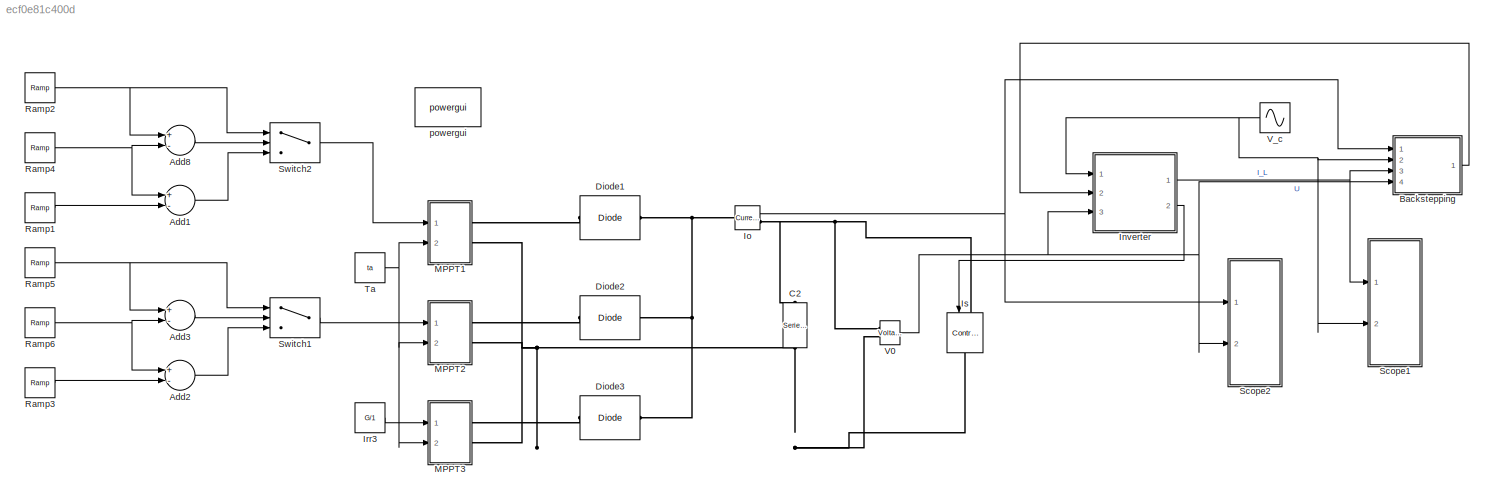
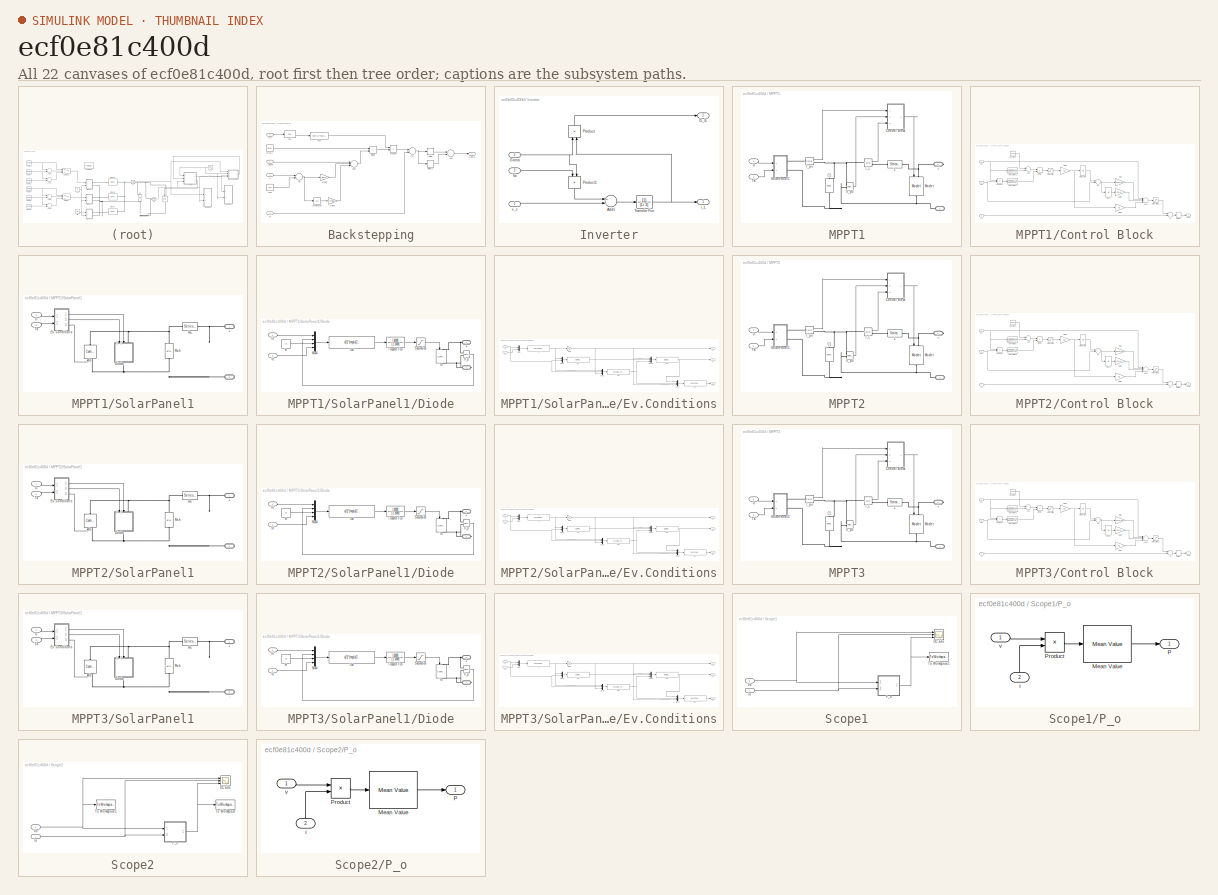
[diagram: thumbnail index - all 22 canvases of the model, root first then tree order]
MODEL slx_ecf0e81c400d
KIND model
CONFIG AbsTol = auto
CONFIG FixedStep = auto
CONFIG MaxStep = 1e-4
CONFIG MinStep = auto
CONFIG RelTol = 1e-3
CONFIG SampleTimeConstraint = Unconstrained
CONFIG Solver = ode23s
CONFIG SolverMode = Auto
CONFIG SolverName = ode23s
CONFIG StartTime = 0.0
CONFIG StopTime = 0.1
BLOCK [Sum] Add1
  InputSameDT = off
  Inputs = +-
  OutDataTypeStr = Inherit: Inherit via internal rule
  Ports = [2, 1]
  SaturateOnIntegerOverflow = off
BLOCK [Sum] Add2
  InputSameDT = off
  Inputs = +-
  OutDataTypeStr = Inherit: Inherit via internal rule
  Ports = [2, 1]
  SaturateOnIntegerOverflow = off
BLOCK [Sum] Add3
  InputSameDT = off
  Inputs = +-
  OutDataTypeStr = Inherit: Inherit via internal rule
  Ports = [2, 1]
  SaturateOnIntegerOverflow = off
BLOCK [Sum] Add8
  InputSameDT = off
  Inputs = +-
  OutDataTypeStr = Inherit: Inherit via internal rule
  Ports = [2, 1]
  SaturateOnIntegerOverflow = off
BLOCK [SubSystem] Backstepping
  Ports = [4, 1]
  RequestExecContextInheritance = off
  Variant = off
BLOCK [Sum] Backstepping/Add
  InputSameDT = off
  OutDataTypeStr = Inherit: Inherit via internal rule
  Ports = [2, 1]
  SaturateOnIntegerOverflow = off
BLOCK [Sum] Backstepping/Add2
  InputSameDT = off
  Inputs = +--
  OutDataTypeStr = Inherit: Inherit via internal rule
  Ports = [3, 1]
  SaturateOnIntegerOverflow = off
BLOCK [Product] Backstepping/Divide
  InputSameDT = off
  Inputs = /*
  OutDataTypeStr = Inherit: Inherit via internal rule
  Ports = [2, 1]
  RndMeth = Floor
  SaturateOnIntegerOverflow = off
BLOCK [Fcn] Backstepping/Fcn
  Expr = sqrt(2)*sin(u(1))
BLOCK [Constant] Backstepping/GAMA
  Value = GAMA
BLOCK [Gain] Backstepping/Gain2
  Gain = k_inv*Cdc_inv
  OutDataTypeStr = Inherit: Inherit via internal rule
  ParamDataTypeStr = Inherit: Inherit via internal rule
  SaturateOnIntegerOverflow = off
BLOCK [Gain] Backstepping/Gain3
  Gain = k_A*Cdc_inv
  OutDataTypeStr = Inherit: Inherit via internal rule
  ParamDataTypeStr = Inherit: Inherit via internal rule
  SaturateOnIntegerOverflow = off
BLOCK [Outport] Backstepping/Gama
  IconDisplay = Port number
BLOCK [Inport] Backstepping/I_boost
  IconDisplay = Port number
BLOCK [Integrator] Backstepping/Integrator
  LowerSaturationLimit = -30
  Ports = [1, 1]
  UpperSaturationLimit = 30
BLOCK [Reference] Backstepping/PLL  REF=powerlib_meascontrol/PLL/PLL
  Ports = [1, 2]
  SourceBlock = powerlib_meascontrol/PLL/PLL
  SourceType = PLL
BLOCK [Product] Backstepping/Product
  InputSameDT = off
  OutDataTypeStr = Inherit: Inherit via internal rule
  Ports = [2, 1]
  RndMeth = Floor
  SaturateOnIntegerOverflow = off
BLOCK [Relay] Backstepping/Relay
  InputProcessing = Elements as channels (sample based)
  OffOutputValue = -0.5
  OffSwitchValue = -delta_Ii
  OnOutputValue = 0.5
  OnSwitchValue = delta_Ii
  ZeroCross = off
BLOCK [Relay] Backstepping/Relay1
  InputProcessing = Elements as channels (sample based)
  OffOutputValue = -0.5
  OffSwitchValue = -delta_Ii/2
  OnOutputValue = 0.5
  OnSwitchValue = delta_Ii/2
  ZeroCross = off
BLOCK [Inport] Backstepping/U
  IconDisplay = Port number
  Port = 4
BLOCK [Constant] Backstepping/Uref
  Value = 400
BLOCK [Sum] Backstepping/e_iL
  InputSameDT = off
  Inputs = +-
  OutDataTypeStr = Inherit: Inherit via internal rule
  Ports = [2, 1]
  SaturateOnIntegerOverflow = off
BLOCK [Sum] Backstepping/eu
  InputSameDT = off
  Inputs = -+
  OutDataTypeStr = Inherit: Inherit via internal rule
  Ports = [2, 1]
  SaturateOnIntegerOverflow = off
BLOCK [Inport] Backstepping/i_L
  IconDisplay = Port number
  Port = 3
BLOCK [Inport] Backstepping/v_c
  IconDisplay = Port number
  Port = 2
BLOCK [Reference] C2  REF=powerlib/Elements/Series RLC Branch
  Ports = [0, 0, 0, 0, 0, 1, 1]
  SourceBlock = powerlib/Elements/Series RLC Branch
  SourceType = Series RLC Branch
BLOCK [Reference] Diode1  REF=powerlib/Power
Electronics/Diode
  Ports = [0, 0, 0, 0, 0, 1, 1]
  SourceBlock = powerlib/Power\nElectronics/Diode
  SourceType = Diode
BLOCK [Reference] Diode2  REF=powerlib/Power
Electronics/Diode
  Ports = [0, 0, 0, 0, 0, 1, 1]
  SourceBlock = powerlib/Power\nElectronics/Diode
  SourceType = Diode
BLOCK [Reference] Diode3  REF=powerlib/Power
Electronics/Diode
  Ports = [0, 0, 0, 0, 0, 1, 1]
  SourceBlock = powerlib/Power\nElectronics/Diode
  SourceType = Diode
BLOCK [SubSystem] Inverter
  Ports = [3, 2]
  RequestExecContextInheritance = off
  Variant = off
BLOCK [Sum] Inverter/Add1
  InputSameDT = off
  Inputs = +-
  OutDataTypeStr = Inherit: Inherit via internal rule
  Ports = [2, 1]
  SaturateOnIntegerOverflow = off
BLOCK [Outport] Inverter/G_IL
  IconDisplay = Port number
  Port = 2
BLOCK [Inport] Inverter/Gama
  IconDisplay = Port number
  Port = 2
BLOCK [Product] Inverter/Product
  InputSameDT = off
  OutDataTypeStr = Inherit: Inherit via internal rule
  Ports = [2, 1]
  RndMeth = Floor
  SaturateOnIntegerOverflow = off
BLOCK [Product] Inverter/Product1
  InputSameDT = off
  OutDataTypeStr = Inherit: Inherit via internal rule
  Ports = [2, 1]
  RndMeth = Floor
  SaturateOnIntegerOverflow = off
BLOCK [TransferFcn] Inverter/Transfer Fcn
  Denominator = [Li 3]
BLOCK [Inport] Inverter/Vo
  IconDisplay = Port number
  Port = 3
BLOCK [Outport] Inverter/i_L
  IconDisplay = Port number
BLOCK [Inport] Inverter/v_c
  IconDisplay = Port number
BLOCK [Reference] Io  REF=powerlib/Measurements/Current Measurement
  Ports = [0, 1, 0, 0, 0, 1, 1]
  SourceBlock = powerlib/Measurements/Current Measurement
  SourceType = Current Measurement
BLOCK [Constant] Irr3
  Value = G/1
BLOCK [Reference] Is  REF=powerlib/Electrical
Sources/Controlled Current Source
  Ports = [1, 0, 0, 0, 0, 1, 1]
  SourceBlock = powerlib/Electrical\nSources/Controlled Current Source
  SourceType = Controlled Current Source
BLOCK [SubSystem] MPPT1
  Ports = [2, 0, 0, 0, 0, 0, 2]
  RequestExecContextInheritance = off
  Variant = off
BLOCK [PMIOPort] MPPT1/+
  Port = 1
  Side = Right
BLOCK [PMIOPort] MPPT1/-
  Port = 2
  Side = Right
BLOCK [Reference] MPPT1/C1  REF=powerlib/Elements/Series RLC Branch
  Ports = [0, 0, 0, 0, 0, 1, 1]
  SourceBlock = powerlib/Elements/Series RLC Branch
  SourceType = Series RLC Branch
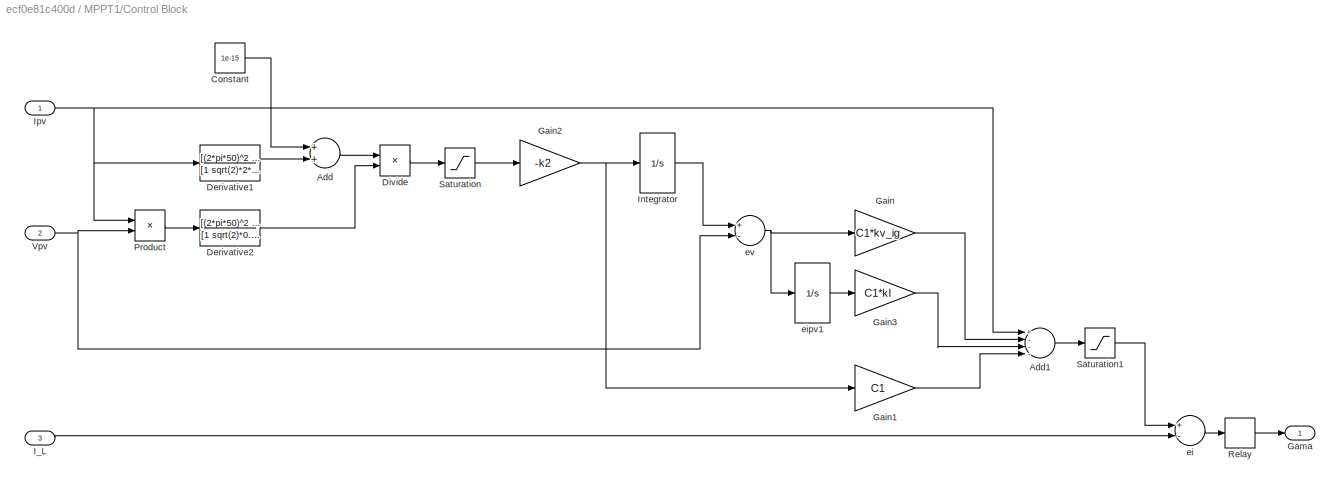
BLOCK [SubSystem] MPPT1/Control Block
  Ports = [3, 1]
  RequestExecContextInheritance = off
  Variant = off
BLOCK [Sum] MPPT1/Control Block/Add
  InputSameDT = off
  OutDataTypeStr = Inherit: Inherit via internal rule
  Ports = [2, 1]
  SaturateOnIntegerOverflow = off
BLOCK [Sum] MPPT1/Control Block/Add1
  InputSameDT = off
  Inputs = +---
  OutDataTypeStr = Inherit: Inherit via internal rule
  Ports = [4, 1]
  SaturateOnIntegerOverflow = off
BLOCK [Constant] MPPT1/Control Block/Constant
  Value = 1e-15
BLOCK [TransferFcn] MPPT1/Control Block/Derivative1
  Denominator = [1 sqrt(2)*2*pi*50 (2*pi*50)^2]
  Numerator = [(2*pi*50)^2 0]
BLOCK [TransferFcn] MPPT1/Control Block/Derivative2
  Denominator = [1 sqrt(2)*0.7*2*pi*50 (2*pi*50)^2]
  Numerator = [(2*pi*50)^2 0]
BLOCK [Product] MPPT1/Control Block/Divide
  InputSameDT = off
  Inputs = /*
  OutDataTypeStr = Inherit: Inherit via internal rule
  Ports = [2, 1]
  RndMeth = Floor
  SaturateOnIntegerOverflow = off
BLOCK [Gain] MPPT1/Control Block/Gain
  Gain = C1*kv_ig
  OutDataTypeStr = Inherit: Inherit via internal rule
  ParamDataTypeStr = Inherit: Inherit via internal rule
  SaturateOnIntegerOverflow = off
BLOCK [Gain] MPPT1/Control Block/Gain1
  Gain = C1
  OutDataTypeStr = Inherit: Inherit via internal rule
  ParamDataTypeStr = Inherit: Inherit via internal rule
  SaturateOnIntegerOverflow = off
BLOCK [Gain] MPPT1/Control Block/Gain2
  Gain = -k2
  OutDataTypeStr = Inherit: Inherit via internal rule
  ParamDataTypeStr = Inherit: Inherit via internal rule
  SaturateOnIntegerOverflow = off
BLOCK [Gain] MPPT1/Control Block/Gain3
  Gain = C1*kI
  OutDataTypeStr = Inherit: Inherit via internal rule
  ParamDataTypeStr = Inherit: Inherit via internal rule
  SaturateOnIntegerOverflow = off
BLOCK [Outport] MPPT1/Control Block/Gama
  IconDisplay = Port number
BLOCK [Inport] MPPT1/Control Block/I_L
  IconDisplay = Port number
  Port = 3
BLOCK [Integrator] MPPT1/Control Block/Integrator
  InitialCondition = Voc*0.75
  LimitOutput = on
  LowerSaturationLimit = 0
  Ports = [1, 1]
  UpperSaturationLimit = Voc
BLOCK [Inport] MPPT1/Control Block/Ipv
  IconDisplay = Port number
BLOCK [Product] MPPT1/Control Block/Product
  InputSameDT = off
  Inputs = **
  OutDataTypeStr = Inherit: Inherit via internal rule
  Ports = [2, 1]
  RndMeth = Floor
  SaturateOnIntegerOverflow = off
BLOCK [Relay] MPPT1/Control Block/Relay
  InputProcessing = Elements as channels (sample based)
  OffSwitchValue = -delta_Il
  OnSwitchValue = delta_Il
BLOCK [Saturate] MPPT1/Control Block/Saturation
  InputPortMap = u0
  LowerLimit = -2
  Ports = [1, 1]
  UpperLimit = 2
BLOCK [Saturate] MPPT1/Control Block/Saturation1
  InputPortMap = u0
  LowerLimit = 0
  Ports = [1, 1]
  UpperLimit = Isc*1.2
BLOCK [Inport] MPPT1/Control Block/Vpv
  IconDisplay = Port number
  Port = 2
BLOCK [Sum] MPPT1/Control Block/ei
  InputSameDT = off
  Inputs = +-
  OutDataTypeStr = Inherit: Inherit via internal rule
  Ports = [2, 1]
  SaturateOnIntegerOverflow = off
BLOCK [Integrator] MPPT1/Control Block/eipv1
  LowerSaturationLimit = 0
  Ports = [1, 1]
  UpperSaturationLimit = Voc*N
BLOCK [Sum] MPPT1/Control Block/ev
  InputSameDT = off
  Inputs = +-
  OutDataTypeStr = Inherit: Inherit via internal rule
  Ports = [2, 1]
  SaturateOnIntegerOverflow = off
BLOCK [Inport] MPPT1/G
  IconDisplay = Port number
BLOCK [Reference] MPPT1/I_L  REF=powerlib/Measurements/Current Measurement
  Ports = [0, 1, 0, 0, 0, 1, 1]
  SourceBlock = powerlib/Measurements/Current Measurement
  SourceType = Current Measurement
BLOCK [Reference] MPPT1/I_pv  REF=powerlib/Measurements/Current Measurement
  Ports = [0, 1, 0, 0, 0, 1, 1]
  SourceBlock = powerlib/Measurements/Current Measurement
  SourceType = Current Measurement
BLOCK [Reference] MPPT1/L  REF=powerlib/Elements/Series RLC Branch
  Ports = [0, 0, 0, 0, 0, 1, 1]
  SourceBlock = powerlib/Elements/Series RLC Branch
  SourceType = Series RLC Branch
BLOCK [Reference] MPPT1/Mosfet  REF=powerlib/Power
Electronics/Mosfet
  Ports = [1, 0, 0, 0, 0, 1, 1]
  SourceBlock = powerlib/Power\nElectronics/Mosfet
  SourceType = Mosfet
BLOCK [SubSystem] MPPT1/SolarPanel1
  Ports = [2, 0, 0, 0, 0, 0, 2]
  RequestExecContextInheritance = off
  Variant = off
BLOCK [PMIOPort] MPPT1/SolarPanel1/+
  Port = 1
  Side = Right
BLOCK [PMIOPort] MPPT1/SolarPanel1/-
  Port = 2
  Side = Right
BLOCK [SubSystem] MPPT1/SolarPanel1/Diode
  AncestorBlock = re_lib/Solar/PV Array/Diode Rsh
  Ports = [2, 0, 0, 0, 0, 1, 1]
  RequestExecContextInheritance = off
  Variant = off
BLOCK [PMIOPort] MPPT1/SolarPanel1/Diode/+
  Port = 1
  Side = Left
BLOCK [PMIOPort] MPPT1/SolarPanel1/Diode/-
  Port = 2
  Side = Right
BLOCK [Fcn] MPPT1/SolarPanel1/Diode/I0d
  Expr = u(1)*(exp(u(2)/(u(3)*u(4)))-1)
BLOCK [Reference] MPPT1/SolarPanel1/Diode/Id  REF=powerlib/Electrical
Sources/Controlled Current Source
  Ports = [1, 0, 0, 0, 0, 1, 1]
  SourceBlock = powerlib/Electrical\nSources/Controlled Current Source
  SourceType = Controlled Current Source
BLOCK [Inport] MPPT1/SolarPanel1/Diode/Io
  IconDisplay = Port number
BLOCK [Mux] MPPT1/SolarPanel1/Diode/Mux4
  DisplayOption = bar
  Ports = [4, 1]
BLOCK [Saturate] MPPT1/SolarPanel1/Diode/Saturation
  InputPortMap = u0
  LowerLimit = 0
  Ports = [1, 1]
  UpperLimit = Isc
BLOCK [TransferFcn] MPPT1/SolarPanel1/Diode/Transfer Fcn
  Denominator = [1 1000]
  Numerator = [1000]
BLOCK [Reference] MPPT1/SolarPanel1/Diode/V_d  REF=powerlib/Measurements/Voltage Measurement
  Ports = [0, 1, 0, 0, 0, 2]
  SourceBlock = powerlib/Measurements/Voltage Measurement
  SourceType = Voltage Measurement
BLOCK [Inport] MPPT1/SolarPanel1/Diode/Vt
  IconDisplay = Port number
  Port = 2
BLOCK [Constant] MPPT1/SolarPanel1/Diode/m
  Value = m
BLOCK [SubSystem] MPPT1/SolarPanel1/Ev.Conditions
  Ports = [2, 3]
  RequestExecContextInheritance = off
  Variant = off
BLOCK [Inport] MPPT1/SolarPanel1/Ev.Conditions/G
  IconDisplay = Port number
BLOCK [Gain] MPPT1/SolarPanel1/Ev.Conditions/Gain
  Gain = K/q
  OutDataTypeStr = Inherit: Inherit via internal rule
  ParamDataTypeStr = Inherit: Inherit via internal rule
  SaturateOnIntegerOverflow = off
BLOCK [Fcn] MPPT1/SolarPanel1/Ev.Conditions/I0o
  Expr = (u(2) - (u(3) - Rs*u(2))/ Rsh) * exp(-u(3)/ (m*u(1)))
BLOCK [Fcn] MPPT1/SolarPanel1/Ev.Conditions/I0s
  Expr = u(1) * exp(u(2)/ (m*u(3))) + u(2)/ Rsh
BLOCK [Outport] MPPT1/SolarPanel1/Ev.Conditions/Io
  IconDisplay = Port number
  Port = 2
BLOCK [Outport] MPPT1/SolarPanel1/Ev.Conditions/Is
  IconDisplay = Port number
  Port = 3
BLOCK [Fcn] MPPT1/SolarPanel1/Ev.Conditions/Isc
  Expr = u(2)/ Gr * (Iscr + miu_Isc*(u(1) - Tr))
BLOCK [Mux] MPPT1/SolarPanel1/Ev.Conditions/Mux
  DisplayOption = bar
  Inputs = 2
  Ports = [2, 1]
BLOCK [Mux] MPPT1/SolarPanel1/Ev.Conditions/Mux1
  DisplayOption = bar
  Inputs = 2
  Ports = [2, 1]
BLOCK [Mux] MPPT1/SolarPanel1/Ev.Conditions/Mux2
  DisplayOption = bar
  Inputs = 3
  Ports = [3, 1]
BLOCK [Mux] MPPT1/SolarPanel1/Ev.Conditions/Mux3
  DisplayOption = bar
  Inputs = 3
  Ports = [3, 1]
BLOCK [Mux] MPPT1/SolarPanel1/Ev.Conditions/Mux4
  DisplayOption = bar
  Inputs = 3
  Ports = [3, 1]
BLOCK [Inport] MPPT1/SolarPanel1/Ev.Conditions/Ta
  IconDisplay = Port number
  Port = 2
BLOCK [Fcn] MPPT1/SolarPanel1/Ev.Conditions/Tc
  Expr = u(2)+u(1)*(NOCT-20)/800+T
BLOCK [Fcn] MPPT1/SolarPanel1/Ev.Conditions/Voc
  Expr = Vocr + miu_Voc*(u(1) - Tr) + m*u(3)*log(u(2)/Gr)
BLOCK [Outport] MPPT1/SolarPanel1/Ev.Conditions/Vt
  IconDisplay = Port number
BLOCK [Inport] MPPT1/SolarPanel1/G
  IconDisplay = Port number
BLOCK [Reference] MPPT1/SolarPanel1/Is  REF=powerlib/Electrical
Sources/Controlled Current Source
  Ports = [1, 0, 0, 0, 0, 1, 1]
  SourceBlock = powerlib/Electrical\nSources/Controlled Current Source
  SourceType = Controlled Current Source
BLOCK [Reference] MPPT1/SolarPanel1/Rs  REF=powerlib/Elements/Series RLC Branch
  Ports = [0, 0, 0, 0, 0, 1, 1]
  SourceBlock = powerlib/Elements/Series RLC Branch
  SourceType = Series RLC Branch
BLOCK [Reference] MPPT1/SolarPanel1/Rsh  REF=powerlib/Elements/Series RLC Branch
  Ports = [0, 0, 0, 0, 0, 1, 1]
  SourceBlock = powerlib/Elements/Series RLC Branch
  SourceType = Series RLC Branch
BLOCK [Inport] MPPT1/SolarPanel1/Ta
  IconDisplay = Port number
  Port = 2
BLOCK [Inport] MPPT1/Ta
  IconDisplay = Port number
  Port = 2
BLOCK [Reference] MPPT1/V_pv  REF=powerlib/Measurements/Voltage Measurement
  Ports = [0, 1, 0, 0, 0, 2]
  SourceBlock = powerlib/Measurements/Voltage Measurement
  SourceType = Voltage Measurement
BLOCK [SubSystem] MPPT2
  Ports = [2, 0, 0, 0, 0, 0, 2]
  RequestExecContextInheritance = off
  Variant = off
BLOCK [PMIOPort] MPPT2/+
  Port = 1
  Side = Right
BLOCK [PMIOPort] MPPT2/-
  Port = 2
  Side = Right
BLOCK [Reference] MPPT2/C1  REF=powerlib/Elements/Series RLC Branch
  Ports = [0, 0, 0, 0, 0, 1, 1]
  SourceBlock = powerlib/Elements/Series RLC Branch
  SourceType = Series RLC Branch
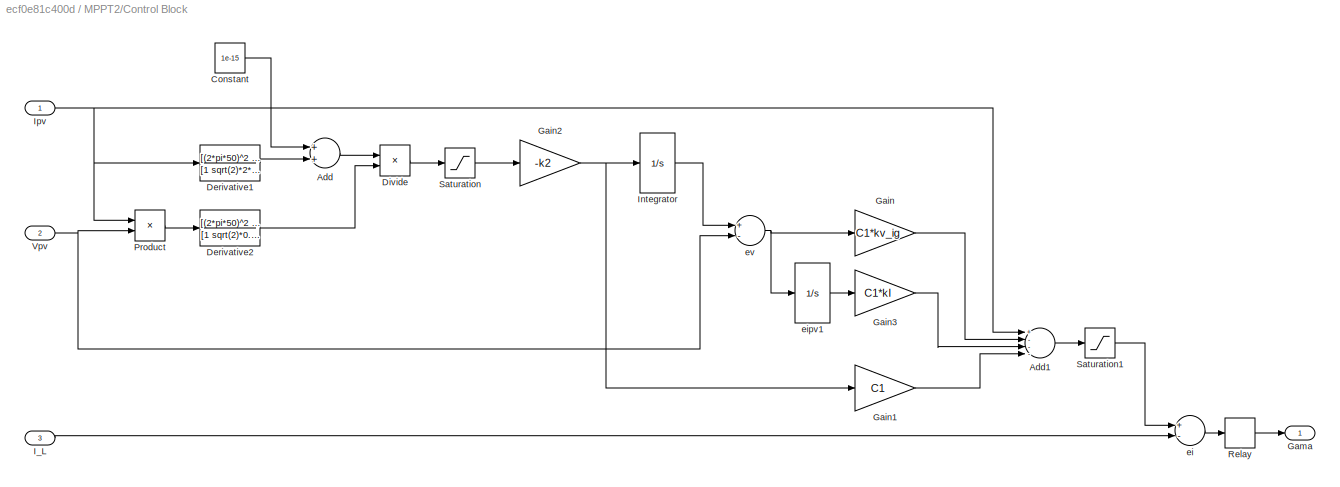
BLOCK [SubSystem] MPPT2/Control Block
  Ports = [3, 1]
  RequestExecContextInheritance = off
  Variant = off
BLOCK [Sum] MPPT2/Control Block/Add
  InputSameDT = off
  OutDataTypeStr = Inherit: Inherit via internal rule
  Ports = [2, 1]
  SaturateOnIntegerOverflow = off
BLOCK [Sum] MPPT2/Control Block/Add1
  InputSameDT = off
  Inputs = +---
  OutDataTypeStr = Inherit: Inherit via internal rule
  Ports = [4, 1]
  SaturateOnIntegerOverflow = off
BLOCK [Constant] MPPT2/Control Block/Constant
  Value = 1e-15
BLOCK [TransferFcn] MPPT2/Control Block/Derivative1
  Denominator = [1 sqrt(2)*2*pi*50 (2*pi*50)^2]
  Numerator = [(2*pi*50)^2 0]
BLOCK [TransferFcn] MPPT2/Control Block/Derivative2
  Denominator = [1 sqrt(2)*0.7*2*pi*50 (2*pi*50)^2]
  Numerator = [(2*pi*50)^2 0]
BLOCK [Product] MPPT2/Control Block/Divide
  InputSameDT = off
  Inputs = /*
  OutDataTypeStr = Inherit: Inherit via internal rule
  Ports = [2, 1]
  RndMeth = Floor
  SaturateOnIntegerOverflow = off
BLOCK [Gain] MPPT2/Control Block/Gain
  Gain = C1*kv_ig
  OutDataTypeStr = Inherit: Inherit via internal rule
  ParamDataTypeStr = Inherit: Inherit via internal rule
  SaturateOnIntegerOverflow = off
BLOCK [Gain] MPPT2/Control Block/Gain1
  Gain = C1
  OutDataTypeStr = Inherit: Inherit via internal rule
  ParamDataTypeStr = Inherit: Inherit via internal rule
  SaturateOnIntegerOverflow = off
BLOCK [Gain] MPPT2/Control Block/Gain2
  Gain = -k2
  OutDataTypeStr = Inherit: Inherit via internal rule
  ParamDataTypeStr = Inherit: Inherit via internal rule
  SaturateOnIntegerOverflow = off
BLOCK [Gain] MPPT2/Control Block/Gain3
  Gain = C1*kI
  OutDataTypeStr = Inherit: Inherit via internal rule
  ParamDataTypeStr = Inherit: Inherit via internal rule
  SaturateOnIntegerOverflow = off
BLOCK [Outport] MPPT2/Control Block/Gama
  IconDisplay = Port number
BLOCK [Inport] MPPT2/Control Block/I_L
  IconDisplay = Port number
  Port = 3
BLOCK [Integrator] MPPT2/Control Block/Integrator
  InitialCondition = Voc*0.75
  LimitOutput = on
  LowerSaturationLimit = 0
  Ports = [1, 1]
  UpperSaturationLimit = Voc
BLOCK [Inport] MPPT2/Control Block/Ipv
  IconDisplay = Port number
BLOCK [Product] MPPT2/Control Block/Product
  InputSameDT = off
  Inputs = **
  OutDataTypeStr = Inherit: Inherit via internal rule
  Ports = [2, 1]
  RndMeth = Floor
  SaturateOnIntegerOverflow = off
BLOCK [Relay] MPPT2/Control Block/Relay
  InputProcessing = Elements as channels (sample based)
  OffSwitchValue = -delta_Il
  OnSwitchValue = delta_Il
BLOCK [Saturate] MPPT2/Control Block/Saturation
  InputPortMap = u0
  LowerLimit = -2
  Ports = [1, 1]
  UpperLimit = 2
BLOCK [Saturate] MPPT2/Control Block/Saturation1
  InputPortMap = u0
  LowerLimit = 0
  Ports = [1, 1]
  UpperLimit = Isc*1.2
BLOCK [Inport] MPPT2/Control Block/Vpv
  IconDisplay = Port number
  Port = 2
BLOCK [Sum] MPPT2/Control Block/ei
  InputSameDT = off
  Inputs = +-
  OutDataTypeStr = Inherit: Inherit via internal rule
  Ports = [2, 1]
  SaturateOnIntegerOverflow = off
BLOCK [Integrator] MPPT2/Control Block/eipv1
  LowerSaturationLimit = 0
  Ports = [1, 1]
  UpperSaturationLimit = Voc*N
BLOCK [Sum] MPPT2/Control Block/ev
  InputSameDT = off
  Inputs = +-
  OutDataTypeStr = Inherit: Inherit via internal rule
  Ports = [2, 1]
  SaturateOnIntegerOverflow = off
BLOCK [Inport] MPPT2/G
  IconDisplay = Port number
BLOCK [Reference] MPPT2/I_L  REF=powerlib/Measurements/Current Measurement
  Ports = [0, 1, 0, 0, 0, 1, 1]
  SourceBlock = powerlib/Measurements/Current Measurement
  SourceType = Current Measurement
BLOCK [Reference] MPPT2/I_pv  REF=powerlib/Measurements/Current Measurement
  Ports = [0, 1, 0, 0, 0, 1, 1]
  SourceBlock = powerlib/Measurements/Current Measurement
  SourceType = Current Measurement
BLOCK [Reference] MPPT2/L  REF=powerlib/Elements/Series RLC Branch
  Ports = [0, 0, 0, 0, 0, 1, 1]
  SourceBlock = powerlib/Elements/Series RLC Branch
  SourceType = Series RLC Branch
BLOCK [Reference] MPPT2/Mosfet  REF=powerlib/Power
Electronics/Mosfet
  Ports = [1, 0, 0, 0, 0, 1, 1]
  SourceBlock = powerlib/Power\nElectronics/Mosfet
  SourceType = Mosfet
BLOCK [SubSystem] MPPT2/SolarPanel1
  Ports = [2, 0, 0, 0, 0, 0, 2]
  RequestExecContextInheritance = off
  Variant = off
BLOCK [PMIOPort] MPPT2/SolarPanel1/+
  Port = 1
  Side = Right
BLOCK [PMIOPort] MPPT2/SolarPanel1/-
  Port = 2
  Side = Right
BLOCK [SubSystem] MPPT2/SolarPanel1/Diode
  AncestorBlock = re_lib/Solar/PV Array/Diode Rsh
  Ports = [2, 0, 0, 0, 0, 1, 1]
  RequestExecContextInheritance = off
  Variant = off
BLOCK [PMIOPort] MPPT2/SolarPanel1/Diode/+
  Port = 1
  Side = Left
BLOCK [PMIOPort] MPPT2/SolarPanel1/Diode/-
  Port = 2
  Side = Right
BLOCK [Fcn] MPPT2/SolarPanel1/Diode/I0d
  Expr = u(1)*(exp(u(2)/(u(3)*u(4)))-1)
BLOCK [Reference] MPPT2/SolarPanel1/Diode/Id  REF=powerlib/Electrical
Sources/Controlled Current Source
  Ports = [1, 0, 0, 0, 0, 1, 1]
  SourceBlock = powerlib/Electrical\nSources/Controlled Current Source
  SourceType = Controlled Current Source
BLOCK [Inport] MPPT2/SolarPanel1/Diode/Io
  IconDisplay = Port number
BLOCK [Mux] MPPT2/SolarPanel1/Diode/Mux4
  DisplayOption = bar
  Ports = [4, 1]
BLOCK [Saturate] MPPT2/SolarPanel1/Diode/Saturation
  InputPortMap = u0
  LowerLimit = 0
  Ports = [1, 1]
  UpperLimit = Isc
BLOCK [TransferFcn] MPPT2/SolarPanel1/Diode/Transfer Fcn
  Denominator = [1 1000]
  Numerator = [1000]
BLOCK [Reference] MPPT2/SolarPanel1/Diode/V_d  REF=powerlib/Measurements/Voltage Measurement
  Ports = [0, 1, 0, 0, 0, 2]
  SourceBlock = powerlib/Measurements/Voltage Measurement
  SourceType = Voltage Measurement
BLOCK [Inport] MPPT2/SolarPanel1/Diode/Vt
  IconDisplay = Port number
  Port = 2
BLOCK [Constant] MPPT2/SolarPanel1/Diode/m
  Value = m
BLOCK [SubSystem] MPPT2/SolarPanel1/Ev.Conditions
  Ports = [2, 3]
  RequestExecContextInheritance = off
  Variant = off
BLOCK [Inport] MPPT2/SolarPanel1/Ev.Conditions/G
  IconDisplay = Port number
BLOCK [Gain] MPPT2/SolarPanel1/Ev.Conditions/Gain
  Gain = K/q
  OutDataTypeStr = Inherit: Inherit via internal rule
  ParamDataTypeStr = Inherit: Inherit via internal rule
  SaturateOnIntegerOverflow = off
BLOCK [Fcn] MPPT2/SolarPanel1/Ev.Conditions/I0o
  Expr = (u(2) - (u(3) - Rs*u(2))/ Rsh) * exp(-u(3)/ (m*u(1)))
BLOCK [Fcn] MPPT2/SolarPanel1/Ev.Conditions/I0s
  Expr = u(1) * exp(u(2)/ (m*u(3))) + u(2)/ Rsh
BLOCK [Outport] MPPT2/SolarPanel1/Ev.Conditions/Io
  IconDisplay = Port number
  Port = 2
BLOCK [Outport] MPPT2/SolarPanel1/Ev.Conditions/Is
  IconDisplay = Port number
  Port = 3
BLOCK [Fcn] MPPT2/SolarPanel1/Ev.Conditions/Isc
  Expr = u(2)/ Gr * (Iscr + miu_Isc*(u(1) - Tr))
BLOCK [Mux] MPPT2/SolarPanel1/Ev.Conditions/Mux
  DisplayOption = bar
  Inputs = 2
  Ports = [2, 1]
BLOCK [Mux] MPPT2/SolarPanel1/Ev.Conditions/Mux1
  DisplayOption = bar
  Inputs = 2
  Ports = [2, 1]
BLOCK [Mux] MPPT2/SolarPanel1/Ev.Conditions/Mux2
  DisplayOption = bar
  Inputs = 3
  Ports = [3, 1]
BLOCK [Mux] MPPT2/SolarPanel1/Ev.Conditions/Mux3
  DisplayOption = bar
  Inputs = 3
  Ports = [3, 1]
BLOCK [Mux] MPPT2/SolarPanel1/Ev.Conditions/Mux4
  DisplayOption = bar
  Inputs = 3
  Ports = [3, 1]
BLOCK [Inport] MPPT2/SolarPanel1/Ev.Conditions/Ta
  IconDisplay = Port number
  Port = 2
BLOCK [Fcn] MPPT2/SolarPanel1/Ev.Conditions/Tc
  Expr = u(2)+u(1)*(NOCT-20)/800+T
BLOCK [Fcn] MPPT2/SolarPanel1/Ev.Conditions/Voc
  Expr = Vocr + miu_Voc*(u(1) - Tr) + m*u(3)*log(u(2)/Gr)
BLOCK [Outport] MPPT2/SolarPanel1/Ev.Conditions/Vt
  IconDisplay = Port number
BLOCK [Inport] MPPT2/SolarPanel1/G
  IconDisplay = Port number
BLOCK [Reference] MPPT2/SolarPanel1/Is  REF=powerlib/Electrical
Sources/Controlled Current Source
  Ports = [1, 0, 0, 0, 0, 1, 1]
  SourceBlock = powerlib/Electrical\nSources/Controlled Current Source
  SourceType = Controlled Current Source
BLOCK [Reference] MPPT2/SolarPanel1/Rs  REF=powerlib/Elements/Series RLC Branch
  Ports = [0, 0, 0, 0, 0, 1, 1]
  SourceBlock = powerlib/Elements/Series RLC Branch
  SourceType = Series RLC Branch
BLOCK [Reference] MPPT2/SolarPanel1/Rsh  REF=powerlib/Elements/Series RLC Branch
  Ports = [0, 0, 0, 0, 0, 1, 1]
  SourceBlock = powerlib/Elements/Series RLC Branch
  SourceType = Series RLC Branch
BLOCK [Inport] MPPT2/SolarPanel1/Ta
  IconDisplay = Port number
  Port = 2
BLOCK [Inport] MPPT2/Ta
  IconDisplay = Port number
  Port = 2
BLOCK [Reference] MPPT2/V_pv  REF=powerlib/Measurements/Voltage Measurement
  Ports = [0, 1, 0, 0, 0, 2]
  SourceBlock = powerlib/Measurements/Voltage Measurement
  SourceType = Voltage Measurement
BLOCK [SubSystem] MPPT3
  Ports = [2, 0, 0, 0, 0, 0, 2]
  RequestExecContextInheritance = off
  Variant = off
BLOCK [PMIOPort] MPPT3/+
  Port = 1
  Side = Right
BLOCK [PMIOPort] MPPT3/-
  Port = 2
  Side = Right
BLOCK [Reference] MPPT3/C1  REF=powerlib/Elements/Series RLC Branch
  Ports = [0, 0, 0, 0, 0, 1, 1]
  SourceBlock = powerlib/Elements/Series RLC Branch
  SourceType = Series RLC Branch
BLOCK [SubSystem] MPPT3/Control Block
  Ports = [3, 1]
  RequestExecContextInheritance = off
  Variant = off
BLOCK [Sum] MPPT3/Control Block/Add
  InputSameDT = off
  OutDataTypeStr = Inherit: Inherit via internal rule
  Ports = [2, 1]
  SaturateOnIntegerOverflow = off
BLOCK [Sum] MPPT3/Control Block/Add1
  InputSameDT = off
  Inputs = +---
  OutDataTypeStr = Inherit: Inherit via internal rule
  Ports = [4, 1]
  SaturateOnIntegerOverflow = off
BLOCK [Constant] MPPT3/Control Block/Constant
  Value = 1e-15
BLOCK [TransferFcn] MPPT3/Control Block/Derivative1
  Denominator = [1 sqrt(2)*2*pi*50 (2*pi*50)^2]
  Numerator = [(2*pi*50)^2 0]
BLOCK [TransferFcn] MPPT3/Control Block/Derivative2
  Denominator = [1 sqrt(2)*0.7*2*pi*50 (2*pi*50)^2]
  Numerator = [(2*pi*50)^2 0]
BLOCK [Product] MPPT3/Control Block/Divide
  InputSameDT = off
  Inputs = /*
  OutDataTypeStr = Inherit: Inherit via internal rule
  Ports = [2, 1]
  RndMeth = Floor
  SaturateOnIntegerOverflow = off
BLOCK [Gain] MPPT3/Control Block/Gain
  Gain = C1*kv_ig
  OutDataTypeStr = Inherit: Inherit via internal rule
  ParamDataTypeStr = Inherit: Inherit via internal rule
  SaturateOnIntegerOverflow = off
BLOCK [Gain] MPPT3/Control Block/Gain1
  Gain = C1
  OutDataTypeStr = Inherit: Inherit via internal rule
  ParamDataTypeStr = Inherit: Inherit via internal rule
  SaturateOnIntegerOverflow = off
BLOCK [Gain] MPPT3/Control Block/Gain2
  Gain = -k2
  OutDataTypeStr = Inherit: Inherit via internal rule
  ParamDataTypeStr = Inherit: Inherit via internal rule
  SaturateOnIntegerOverflow = off
BLOCK [Gain] MPPT3/Control Block/Gain3
  Gain = C1*kI
  OutDataTypeStr = Inherit: Inherit via internal rule
  ParamDataTypeStr = Inherit: Inherit via internal rule
  SaturateOnIntegerOverflow = off
BLOCK [Outport] MPPT3/Control Block/Gama
  IconDisplay = Port number
BLOCK [Inport] MPPT3/Control Block/I_L
  IconDisplay = Port number
  Port = 3
BLOCK [Integrator] MPPT3/Control Block/Integrator
  InitialCondition = Voc*0.75
  LimitOutput = on
  LowerSaturationLimit = 0
  Ports = [1, 1]
  UpperSaturationLimit = Voc
BLOCK [Inport] MPPT3/Control Block/Ipv
  IconDisplay = Port number
BLOCK [Product] MPPT3/Control Block/Product
  InputSameDT = off
  Inputs = **
  OutDataTypeStr = Inherit: Inherit via internal rule
  Ports = [2, 1]
  RndMeth = Floor
  SaturateOnIntegerOverflow = off
BLOCK [Relay] MPPT3/Control Block/Relay
  InputProcessing = Elements as channels (sample based)
  OffSwitchValue = -delta_Il
  OnSwitchValue = delta_Il
BLOCK [Saturate] MPPT3/Control Block/Saturation
  InputPortMap = u0
  LowerLimit = -2
  Ports = [1, 1]
  UpperLimit = 2
BLOCK [Saturate] MPPT3/Control Block/Saturation1
  InputPortMap = u0
  LowerLimit = 0
  Ports = [1, 1]
  UpperLimit = Isc*1.2
BLOCK [Inport] MPPT3/Control Block/Vpv
  IconDisplay = Port number
  Port = 2
BLOCK [Sum] MPPT3/Control Block/ei
  InputSameDT = off
  Inputs = +-
  OutDataTypeStr = Inherit: Inherit via internal rule
  Ports = [2, 1]
  SaturateOnIntegerOverflow = off
BLOCK [Integrator] MPPT3/Control Block/eipv1
  LowerSaturationLimit = 0
  Ports = [1, 1]
  UpperSaturationLimit = Voc*N
BLOCK [Sum] MPPT3/Control Block/ev
  InputSameDT = off
  Inputs = +-
  OutDataTypeStr = Inherit: Inherit via internal rule
  Ports = [2, 1]
  SaturateOnIntegerOverflow = off
BLOCK [Inport] MPPT3/G
  IconDisplay = Port number
BLOCK [Reference] MPPT3/I_L  REF=powerlib/Measurements/Current Measurement
  Ports = [0, 1, 0, 0, 0, 1, 1]
  SourceBlock = powerlib/Measurements/Current Measurement
  SourceType = Current Measurement
BLOCK [Reference] MPPT3/I_pv  REF=powerlib/Measurements/Current Measurement
  Ports = [0, 1, 0, 0, 0, 1, 1]
  SourceBlock = powerlib/Measurements/Current Measurement
  SourceType = Current Measurement
BLOCK [Reference] MPPT3/L  REF=powerlib/Elements/Series RLC Branch
  Ports = [0, 0, 0, 0, 0, 1, 1]
  SourceBlock = powerlib/Elements/Series RLC Branch
  SourceType = Series RLC Branch
BLOCK [Reference] MPPT3/Mosfet  REF=powerlib/Power
Electronics/Mosfet
  Ports = [1, 0, 0, 0, 0, 1, 1]
  SourceBlock = powerlib/Power\nElectronics/Mosfet
  SourceType = Mosfet
BLOCK [SubSystem] MPPT3/SolarPanel1
  Ports = [2, 0, 0, 0, 0, 0, 2]
  RequestExecContextInheritance = off
  Variant = off
BLOCK [PMIOPort] MPPT3/SolarPanel1/+
  Port = 1
  Side = Right
BLOCK [PMIOPort] MPPT3/SolarPanel1/-
  Port = 2
  Side = Right
BLOCK [SubSystem] MPPT3/SolarPanel1/Diode
  AncestorBlock = re_lib/Solar/PV Array/Diode Rsh
  Ports = [2, 0, 0, 0, 0, 1, 1]
  RequestExecContextInheritance = off
  Variant = off
BLOCK [PMIOPort] MPPT3/SolarPanel1/Diode/+
  Port = 1
  Side = Left
BLOCK [PMIOPort] MPPT3/SolarPanel1/Diode/-
  Port = 2
  Side = Right
BLOCK [Fcn] MPPT3/SolarPanel1/Diode/I0d
  Expr = u(1)*(exp(u(2)/(u(3)*u(4)))-1)
BLOCK [Reference] MPPT3/SolarPanel1/Diode/Id  REF=powerlib/Electrical
Sources/Controlled Current Source
  Ports = [1, 0, 0, 0, 0, 1, 1]
  SourceBlock = powerlib/Electrical\nSources/Controlled Current Source
  SourceType = Controlled Current Source
BLOCK [Inport] MPPT3/SolarPanel1/Diode/Io
  IconDisplay = Port number
BLOCK [Mux] MPPT3/SolarPanel1/Diode/Mux4
  DisplayOption = bar
  Ports = [4, 1]
BLOCK [Saturate] MPPT3/SolarPanel1/Diode/Saturation
  InputPortMap = u0
  LowerLimit = 0
  Ports = [1, 1]
  UpperLimit = Isc
BLOCK [TransferFcn] MPPT3/SolarPanel1/Diode/Transfer Fcn
  Denominator = [1 1000]
  Numerator = [1000]
BLOCK [Reference] MPPT3/SolarPanel1/Diode/V_d  REF=powerlib/Measurements/Voltage Measurement
  Ports = [0, 1, 0, 0, 0, 2]
  SourceBlock = powerlib/Measurements/Voltage Measurement
  SourceType = Voltage Measurement
BLOCK [Inport] MPPT3/SolarPanel1/Diode/Vt
  IconDisplay = Port number
  Port = 2
BLOCK [Constant] MPPT3/SolarPanel1/Diode/m
  Value = m
BLOCK [SubSystem] MPPT3/SolarPanel1/Ev.Conditions
  Ports = [2, 3]
  RequestExecContextInheritance = off
  Variant = off
BLOCK [Inport] MPPT3/SolarPanel1/Ev.Conditions/G
  IconDisplay = Port number
BLOCK [Gain] MPPT3/SolarPanel1/Ev.Conditions/Gain
  Gain = K/q
  OutDataTypeStr = Inherit: Inherit via internal rule
  ParamDataTypeStr = Inherit: Inherit via internal rule
  SaturateOnIntegerOverflow = off
BLOCK [Fcn] MPPT3/SolarPanel1/Ev.Conditions/I0o
  Expr = (u(2) - (u(3) - Rs*u(2))/ Rsh) * exp(-u(3)/ (m*u(1)))
BLOCK [Fcn] MPPT3/SolarPanel1/Ev.Conditions/I0s
  Expr = u(1) * exp(u(2)/ (m*u(3))) + u(2)/ Rsh
BLOCK [Outport] MPPT3/SolarPanel1/Ev.Conditions/Io
  IconDisplay = Port number
  Port = 2
BLOCK [Outport] MPPT3/SolarPanel1/Ev.Conditions/Is
  IconDisplay = Port number
  Port = 3
BLOCK [Fcn] MPPT3/SolarPanel1/Ev.Conditions/Isc
  Expr = u(2)/ Gr * (Iscr + miu_Isc*(u(1) - Tr))
BLOCK [Mux] MPPT3/SolarPanel1/Ev.Conditions/Mux
  DisplayOption = bar
  Inputs = 2
  Ports = [2, 1]
BLOCK [Mux] MPPT3/SolarPanel1/Ev.Conditions/Mux1
  DisplayOption = bar
  Inputs = 2
  Ports = [2, 1]
BLOCK [Mux] MPPT3/SolarPanel1/Ev.Conditions/Mux2
  DisplayOption = bar
  Inputs = 3
  Ports = [3, 1]
BLOCK [Mux] MPPT3/SolarPanel1/Ev.Conditions/Mux3
  DisplayOption = bar
  Inputs = 3
  Ports = [3, 1]
BLOCK [Mux] MPPT3/SolarPanel1/Ev.Conditions/Mux4
  DisplayOption = bar
  Inputs = 3
  Ports = [3, 1]
BLOCK [Inport] MPPT3/SolarPanel1/Ev.Conditions/Ta
  IconDisplay = Port number
  Port = 2
BLOCK [Fcn] MPPT3/SolarPanel1/Ev.Conditions/Tc
  Expr = u(2)+u(1)*(NOCT-20)/800+T
BLOCK [Fcn] MPPT3/SolarPanel1/Ev.Conditions/Voc
  Expr = Vocr + miu_Voc*(u(1) - Tr) + m*u(3)*log(u(2)/Gr)
BLOCK [Outport] MPPT3/SolarPanel1/Ev.Conditions/Vt
  IconDisplay = Port number
BLOCK [Inport] MPPT3/SolarPanel1/G
  IconDisplay = Port number
BLOCK [Reference] MPPT3/SolarPanel1/Is  REF=powerlib/Electrical
Sources/Controlled Current Source
  Ports = [1, 0, 0, 0, 0, 1, 1]
  SourceBlock = powerlib/Electrical\nSources/Controlled Current Source
  SourceType = Controlled Current Source
BLOCK [Reference] MPPT3/SolarPanel1/Rs  REF=powerlib/Elements/Series RLC Branch
  Ports = [0, 0, 0, 0, 0, 1, 1]
  SourceBlock = powerlib/Elements/Series RLC Branch
  SourceType = Series RLC Branch
BLOCK [Reference] MPPT3/SolarPanel1/Rsh  REF=powerlib/Elements/Series RLC Branch
  Ports = [0, 0, 0, 0, 0, 1, 1]
  SourceBlock = powerlib/Elements/Series RLC Branch
  SourceType = Series RLC Branch
BLOCK [Inport] MPPT3/SolarPanel1/Ta
  IconDisplay = Port number
  Port = 2
BLOCK [Inport] MPPT3/Ta
  IconDisplay = Port number
  Port = 2
BLOCK [Reference] MPPT3/V_pv  REF=powerlib/Measurements/Voltage Measurement
  Ports = [0, 1, 0, 0, 0, 2]
  SourceBlock = powerlib/Measurements/Voltage Measurement
  SourceType = Voltage Measurement
BLOCK [Reference] Ramp1  REF=simulink/Sources/Ramp
  Ports = [0, 1]
  SourceBlock = simulink/Sources/Ramp
  SourceType = Ramp
BLOCK [Reference] Ramp2  REF=simulink/Sources/Ramp
  Ports = [0, 1]
  SourceBlock = simulink/Sources/Ramp
  SourceType = Ramp
BLOCK [Reference] Ramp3  REF=simulink/Sources/Ramp
  Ports = [0, 1]
  SourceBlock = simulink/Sources/Ramp
  SourceType = Ramp
BLOCK [Reference] Ramp4  REF=simulink/Sources/Ramp
  Ports = [0, 1]
  SourceBlock = simulink/Sources/Ramp
  SourceType = Ramp
BLOCK [Reference] Ramp5  REF=simulink/Sources/Ramp
  Ports = [0, 1]
  SourceBlock = simulink/Sources/Ramp
  SourceType = Ramp
BLOCK [Reference] Ramp6  REF=simulink/Sources/Ramp
  Ports = [0, 1]
  SourceBlock = simulink/Sources/Ramp
  SourceType = Ramp
BLOCK [SubSystem] Scope1
  Ports = [2]
  RequestExecContextInheritance = off
  Variant = off
BLOCK [Scope] Scope1/DC side
  NumInputPorts = 3
  Ports = [3]
  ScopeSpecificationString = Simulink.scopes.TimeScopeBlockCfg('CurrentConfiguration', extmgr.ConfigurationSet(extmgr.Configuration('Core','General UI',true),extmgr.Configuration('Core','Source UI',true),extmgr.Configuration('Sources','WiredSimulink',true),extmgr.Configuration('Visuals','Time Domain',true,'SerializedDisplays',{struct('MinYLimReal','391.91395','MaxYLimReal','412.00726','YLabelReal','','MinYLimMag','391.91395',...<+2748ch>
BLOCK [Inport] Scope1/Io
  IconDisplay = Port number
BLOCK [SubSystem] Scope1/P_o
  Ports = [2, 1]
  RequestExecContextInheritance = off
  Variant = off
BLOCK [Reference] Scope1/P_o/Mean Value  REF=powerlib_extras/Measurements/Mean Value
  Ports = [1, 1]
  SourceBlock = powerlib_extras/Measurements/Mean Value
  SourceType = Mean value
BLOCK [Outport] Scope1/P_o/P
  IconDisplay = Port number
BLOCK [Product] Scope1/P_o/Product
  InputSameDT = off
  OutDataTypeStr = Inherit: Inherit via internal rule
  Ports = [2, 1]
  RndMeth = Floor
  SaturateOnIntegerOverflow = off
BLOCK [Inport] Scope1/P_o/i
  IconDisplay = Port number
  Port = 2
BLOCK [Inport] Scope1/P_o/v
  IconDisplay = Port number
BLOCK [ToWorkspace] Scope1/To Workspace1
  FixptAsFi = on
  MaxDataPoints = inf
  Ports = [1]
  SampleTime = -1
  Save2DSignal = 3-D array (concatenate along third dimension)
  SaveFormat = Timeseries
  VariableName = Pg
BLOCK [Inport] Scope1/Vo
  IconDisplay = Port number
  Port = 2
BLOCK [SubSystem] Scope2
  Ports = [2]
  RequestExecContextInheritance = off
  Variant = off
BLOCK [Scope] Scope2/DC side
  NumInputPorts = 3
  Ports = [3]
  ScopeSpecificationString = Simulink.scopes.TimeScopeBlockCfg('CurrentConfiguration', extmgr.ConfigurationSet(extmgr.Configuration('Core','General UI',true),extmgr.Configuration('Core','Source UI',true),extmgr.Configuration('Sources','WiredSimulink',true),extmgr.Configuration('Visuals','Time Domain',true,'SerializedDisplays',{struct('MinYLimReal','398.06134','MaxYLimReal','411.24844','YLabelReal','','MinYLimMag','398.06134',...<+2749ch>
BLOCK [Inport] Scope2/Io
  IconDisplay = Port number
BLOCK [SubSystem] Scope2/P_o
  Ports = [2, 1]
  RequestExecContextInheritance = off
  Variant = off
BLOCK [Reference] Scope2/P_o/Mean Value  REF=powerlib_extras/Measurements/Mean Value
  Ports = [1, 1]
  SourceBlock = powerlib_extras/Measurements/Mean Value
  SourceType = Mean value
BLOCK [Outport] Scope2/P_o/P
  IconDisplay = Port number
BLOCK [Product] Scope2/P_o/Product
  InputSameDT = off
  OutDataTypeStr = Inherit: Inherit via internal rule
  Ports = [2, 1]
  RndMeth = Floor
  SaturateOnIntegerOverflow = off
BLOCK [Inport] Scope2/P_o/i
  IconDisplay = Port number
  Port = 2
BLOCK [Inport] Scope2/P_o/v
  IconDisplay = Port number
BLOCK [ToWorkspace] Scope2/To Workspace
  FixptAsFi = on
  MaxDataPoints = inf
  Ports = [1]
  SampleTime = -1
  Save2DSignal = 3-D array (concatenate along third dimension)
  SaveFormat = Timeseries
  VariableName = Po
BLOCK [ToWorkspace] Scope2/To Workspace1
  FixptAsFi = on
  MaxDataPoints = inf
  Ports = [1]
  SampleTime = -1
  Save2DSignal = 3-D array (concatenate along third dimension)
  SaveFormat = Timeseries
  VariableName = Vo
BLOCK [Inport] Scope2/Vo
  IconDisplay = Port number
  Port = 2
BLOCK [Switch] Switch1
  Criteria = u2 > Threshold
  InputSameDT = off
  SaturateOnIntegerOverflow = off
BLOCK [Switch] Switch2
  Criteria = u2 > Threshold
  InputSameDT = off
  SaturateOnIntegerOverflow = off
BLOCK [Constant] Ta
  Value = ta
BLOCK [Reference] V0  REF=powerlib/Measurements/Voltage Measurement
  Ports = [0, 1, 0, 0, 0, 2]
  SourceBlock = powerlib/Measurements/Voltage Measurement
  SourceType = Voltage Measurement
BLOCK [Sin] V_c
  Amplitude = sqrt(2)*230
  Frequency = 2*pi*50
  Ports = [0, 1]
  SampleTime = 0
BLOCK [Reference] powergui  REF=powerlib/powergui
  Ports = []
  Priority = 1
  SourceBlock = powerlib/powergui
  SourceType = PSB option menu block
  UserDataPersistent = on
LINE Add1:1 -> Switch2:3
LINE Add2:1 -> Switch1:3
LINE Add3:1 -> Switch1:2
LINE Add8:1 -> Switch2:2
LINE Backstepping/Add2:1 -> Backstepping/Divide:2
LINE Backstepping/Add:1 -> Backstepping/Gama:1
LINE Backstepping/Divide:1 -> Backstepping/Product:2
LINE Backstepping/Fcn:1 -> Backstepping/Product:1
LINE Backstepping/GAMA:1 -> Backstepping/Divide:1
LINE Backstepping/Gain2:1 -> Backstepping/Add2:2
LINE Backstepping/Gain3:1 -> Backstepping/Add2:3
LINE Backstepping/I_boost:1 -> Backstepping/Add2:1
LINE Backstepping/Integrator:1 -> Backstepping/Gain3:1
LINE Backstepping/PLL:2 -> Backstepping/Fcn:1
LINE Backstepping/Product:1 -> Backstepping/e_iL:1
LINE Backstepping/Relay1:1 -> Backstepping/Add:2
LINE Backstepping/Relay:1 -> Backstepping/Add:1
LINE Backstepping/U:1 -> Backstepping/eu:1
LINE Backstepping/Uref:1 -> Backstepping/eu:2
NET Backstepping/e_iL:1 -> Backstepping/Relay1:1, Backstepping/Relay:1
NET Backstepping/eu:1 -> Backstepping/Gain2:1, Backstepping/Integrator:1
LINE Backstepping/i_L:1 -> Backstepping/e_iL:2
LINE Backstepping/v_c:1 -> Backstepping/PLL:1
LINE Backstepping:1 -> Inverter:2
LINE Inverter/Add1:1 -> Inverter/Transfer Fcn:1
NET Inverter/Gama:1 -> Inverter/Product1:2, Inverter/Product:1
LINE Inverter/Product1:1 -> Inverter/Add1:1
LINE Inverter/Product:1 -> Inverter/G_IL:1
NET Inverter/Transfer Fcn:1 -> Inverter/Product:2, Inverter/i_L:1
LINE Inverter/Vo:1 -> Inverter/Product1:1
LINE Inverter/v_c:1 -> Inverter/Add1:2
NET Inverter:1 -> Backstepping:3, Scope1:1
LINE Inverter:2 -> Is:1
NET Io:1 -> Backstepping:1, Scope2:1
LINE Irr3:1 -> MPPT3:1
LINE MPPT1/Control Block/Add1:1 -> MPPT1/Control Block/Saturation1:1
LINE MPPT1/Control Block/Add:1 -> MPPT1/Control Block/Divide:1
LINE MPPT1/Control Block/Constant:1 -> MPPT1/Control Block/Add:1
LINE MPPT1/Control Block/Derivative1:1 -> MPPT1/Control Block/Add:2
LINE MPPT1/Control Block/Derivative2:1 -> MPPT1/Control Block/Divide:2
LINE MPPT1/Control Block/Divide:1 -> MPPT1/Control Block/Saturation:1
LINE MPPT1/Control Block/Gain1:1 -> MPPT1/Control Block/Add1:4
NET MPPT1/Control Block/Gain2:1 -> MPPT1/Control Block/Gain1:1, MPPT1/Control Block/Integrator:1
LINE MPPT1/Control Block/Gain3:1 -> MPPT1/Control Block/Add1:3
LINE MPPT1/Control Block/Gain:1 -> MPPT1/Control Block/Add1:2
LINE MPPT1/Control Block/I_L:1 -> MPPT1/Control Block/ei:2
LINE MPPT1/Control Block/Integrator:1 -> MPPT1/Control Block/ev:1
NET MPPT1/Control Block/Ipv:1 -> MPPT1/Control Block/Add1:1, MPPT1/Control Block/Derivative1:1, MPPT1/Control Block/Product:1
LINE MPPT1/Control Block/Product:1 -> MPPT1/Control Block/Derivative2:1
LINE MPPT1/Control Block/Relay:1 -> MPPT1/Control Block/Gama:1
LINE MPPT1/Control Block/Saturation1:1 -> MPPT1/Control Block/ei:1
LINE MPPT1/Control Block/Saturation:1 -> MPPT1/Control Block/Gain2:1
NET MPPT1/Control Block/Vpv:1 -> MPPT1/Control Block/Product:2, MPPT1/Control Block/ev:2
LINE MPPT1/Control Block/ei:1 -> MPPT1/Control Block/Relay:1
LINE MPPT1/Control Block/eipv1:1 -> MPPT1/Control Block/Gain3:1
NET MPPT1/Control Block/ev:1 -> MPPT1/Control Block/Gain:1, MPPT1/Control Block/eipv1:1
LINE MPPT1/Control Block:1 -> MPPT1/Mosfet:1
LINE MPPT1/G:1 -> MPPT1/SolarPanel1:1
LINE MPPT1/I_L:1 -> MPPT1/Control Block:3
LINE MPPT1/I_pv:1 -> MPPT1/Control Block:1
NET MPPT1/SolarPanel1/Ev.Conditions/G:1 -> MPPT1/SolarPanel1/Ev.Conditions/Mux1:2, MPPT1/SolarPanel1/Ev.Conditions/Mux2:2, MPPT1/SolarPanel1/Ev.Conditions/Mux:1
NET MPPT1/SolarPanel1/Ev.Conditions/Gain:1 -> MPPT1/SolarPanel1/Ev.Conditions/Mux2:3, MPPT1/SolarPanel1/Ev.Conditions/Mux3:1, MPPT1/SolarPanel1/Ev.Conditions/Mux4:3, MPPT1/SolarPanel1/Ev.Conditions/Vt:1
NET MPPT1/SolarPanel1/Ev.Conditions/I0o:1 -> MPPT1/SolarPanel1/Ev.Conditions/Io:1, MPPT1/SolarPanel1/Ev.Conditions/Mux4:1
LINE MPPT1/SolarPanel1/Ev.Conditions/I0s:1 -> MPPT1/SolarPanel1/Ev.Conditions/Is:1
LINE MPPT1/SolarPanel1/Ev.Conditions/Isc:1 -> MPPT1/SolarPanel1/Ev.Conditions/Mux3:2
LINE MPPT1/SolarPanel1/Ev.Conditions/Mux1:1 -> MPPT1/SolarPanel1/Ev.Conditions/Isc:1
LINE MPPT1/SolarPanel1/Ev.Conditions/Mux2:1 -> MPPT1/SolarPanel1/Ev.Conditions/Voc:1
LINE MPPT1/SolarPanel1/Ev.Conditions/Mux3:1 -> MPPT1/SolarPanel1/Ev.Conditions/I0o:1
LINE MPPT1/SolarPanel1/Ev.Conditions/Mux4:1 -> MPPT1/SolarPanel1/Ev.Conditions/I0s:1
LINE MPPT1/SolarPanel1/Ev.Conditions/Mux:1 -> MPPT1/SolarPanel1/Ev.Conditions/Tc:1
LINE MPPT1/SolarPanel1/Ev.Conditions/Ta:1 -> MPPT1/SolarPanel1/Ev.Conditions/Mux:2
NET MPPT1/SolarPanel1/Ev.Conditions/Tc:1 -> MPPT1/SolarPanel1/Ev.Conditions/Gain:1, MPPT1/SolarPanel1/Ev.Conditions/Mux1:1, MPPT1/SolarPanel1/Ev.Conditions/Mux2:1
NET MPPT1/SolarPanel1/Ev.Conditions/Voc:1 -> MPPT1/SolarPanel1/Ev.Conditions/Mux3:3, MPPT1/SolarPanel1/Ev.Conditions/Mux4:2
LINE MPPT1/SolarPanel1/Ev.Conditions:1 -> MPPT1/SolarPanel1/Diode:2
LINE MPPT1/SolarPanel1/Ev.Conditions:2 -> MPPT1/SolarPanel1/Diode:1
LINE MPPT1/SolarPanel1/Ev.Conditions:3 -> MPPT1/SolarPanel1/Is:1
LINE MPPT1/SolarPanel1/G:1 -> MPPT1/SolarPanel1/Ev.Conditions:1
LINE MPPT1/SolarPanel1/Ta:1 -> MPPT1/SolarPanel1/Ev.Conditions:2
LINE MPPT1/Ta:1 -> MPPT1/SolarPanel1:2
LINE MPPT1/V_pv:1 -> MPPT1/Control Block:2
LINE MPPT2/Control Block/Add1:1 -> MPPT2/Control Block/Saturation1:1
LINE MPPT2/Control Block/Add:1 -> MPPT2/Control Block/Divide:1
LINE MPPT2/Control Block/Constant:1 -> MPPT2/Control Block/Add:1
LINE MPPT2/Control Block/Derivative1:1 -> MPPT2/Control Block/Add:2
LINE MPPT2/Control Block/Derivative2:1 -> MPPT2/Control Block/Divide:2
LINE MPPT2/Control Block/Divide:1 -> MPPT2/Control Block/Saturation:1
LINE MPPT2/Control Block/Gain1:1 -> MPPT2/Control Block/Add1:4
NET MPPT2/Control Block/Gain2:1 -> MPPT2/Control Block/Gain1:1, MPPT2/Control Block/Integrator:1
LINE MPPT2/Control Block/Gain3:1 -> MPPT2/Control Block/Add1:3
LINE MPPT2/Control Block/Gain:1 -> MPPT2/Control Block/Add1:2
LINE MPPT2/Control Block/I_L:1 -> MPPT2/Control Block/ei:2
LINE MPPT2/Control Block/Integrator:1 -> MPPT2/Control Block/ev:1
NET MPPT2/Control Block/Ipv:1 -> MPPT2/Control Block/Add1:1, MPPT2/Control Block/Derivative1:1, MPPT2/Control Block/Product:1
LINE MPPT2/Control Block/Product:1 -> MPPT2/Control Block/Derivative2:1
LINE MPPT2/Control Block/Relay:1 -> MPPT2/Control Block/Gama:1
LINE MPPT2/Control Block/Saturation1:1 -> MPPT2/Control Block/ei:1
LINE MPPT2/Control Block/Saturation:1 -> MPPT2/Control Block/Gain2:1
NET MPPT2/Control Block/Vpv:1 -> MPPT2/Control Block/Product:2, MPPT2/Control Block/ev:2
LINE MPPT2/Control Block/ei:1 -> MPPT2/Control Block/Relay:1
LINE MPPT2/Control Block/eipv1:1 -> MPPT2/Control Block/Gain3:1
NET MPPT2/Control Block/ev:1 -> MPPT2/Control Block/Gain:1, MPPT2/Control Block/eipv1:1
LINE MPPT2/Control Block:1 -> MPPT2/Mosfet:1
LINE MPPT2/G:1 -> MPPT2/SolarPanel1:1
LINE MPPT2/I_L:1 -> MPPT2/Control Block:3
LINE MPPT2/I_pv:1 -> MPPT2/Control Block:1
NET MPPT2/SolarPanel1/Ev.Conditions/G:1 -> MPPT2/SolarPanel1/Ev.Conditions/Mux1:2, MPPT2/SolarPanel1/Ev.Conditions/Mux2:2, MPPT2/SolarPanel1/Ev.Conditions/Mux:1
NET MPPT2/SolarPanel1/Ev.Conditions/Gain:1 -> MPPT2/SolarPanel1/Ev.Conditions/Mux2:3, MPPT2/SolarPanel1/Ev.Conditions/Mux3:1, MPPT2/SolarPanel1/Ev.Conditions/Mux4:3, MPPT2/SolarPanel1/Ev.Conditions/Vt:1
NET MPPT2/SolarPanel1/Ev.Conditions/I0o:1 -> MPPT2/SolarPanel1/Ev.Conditions/Io:1, MPPT2/SolarPanel1/Ev.Conditions/Mux4:1
LINE MPPT2/SolarPanel1/Ev.Conditions/I0s:1 -> MPPT2/SolarPanel1/Ev.Conditions/Is:1
LINE MPPT2/SolarPanel1/Ev.Conditions/Isc:1 -> MPPT2/SolarPanel1/Ev.Conditions/Mux3:2
LINE MPPT2/SolarPanel1/Ev.Conditions/Mux1:1 -> MPPT2/SolarPanel1/Ev.Conditions/Isc:1
LINE MPPT2/SolarPanel1/Ev.Conditions/Mux2:1 -> MPPT2/SolarPanel1/Ev.Conditions/Voc:1
LINE MPPT2/SolarPanel1/Ev.Conditions/Mux3:1 -> MPPT2/SolarPanel1/Ev.Conditions/I0o:1
LINE MPPT2/SolarPanel1/Ev.Conditions/Mux4:1 -> MPPT2/SolarPanel1/Ev.Conditions/I0s:1
LINE MPPT2/SolarPanel1/Ev.Conditions/Mux:1 -> MPPT2/SolarPanel1/Ev.Conditions/Tc:1
LINE MPPT2/SolarPanel1/Ev.Conditions/Ta:1 -> MPPT2/SolarPanel1/Ev.Conditions/Mux:2
NET MPPT2/SolarPanel1/Ev.Conditions/Tc:1 -> MPPT2/SolarPanel1/Ev.Conditions/Gain:1, MPPT2/SolarPanel1/Ev.Conditions/Mux1:1, MPPT2/SolarPanel1/Ev.Conditions/Mux2:1
NET MPPT2/SolarPanel1/Ev.Conditions/Voc:1 -> MPPT2/SolarPanel1/Ev.Conditions/Mux3:3, MPPT2/SolarPanel1/Ev.Conditions/Mux4:2
LINE MPPT2/SolarPanel1/Ev.Conditions:1 -> MPPT2/SolarPanel1/Diode:2
LINE MPPT2/SolarPanel1/Ev.Conditions:2 -> MPPT2/SolarPanel1/Diode:1
LINE MPPT2/SolarPanel1/Ev.Conditions:3 -> MPPT2/SolarPanel1/Is:1
LINE MPPT2/SolarPanel1/G:1 -> MPPT2/SolarPanel1/Ev.Conditions:1
LINE MPPT2/SolarPanel1/Ta:1 -> MPPT2/SolarPanel1/Ev.Conditions:2
LINE MPPT2/Ta:1 -> MPPT2/SolarPanel1:2
LINE MPPT2/V_pv:1 -> MPPT2/Control Block:2
LINE MPPT3/Control Block/Add1:1 -> MPPT3/Control Block/Saturation1:1
LINE MPPT3/Control Block/Add:1 -> MPPT3/Control Block/Divide:1
LINE MPPT3/Control Block/Constant:1 -> MPPT3/Control Block/Add:1
LINE MPPT3/Control Block/Derivative1:1 -> MPPT3/Control Block/Add:2
LINE MPPT3/Control Block/Derivative2:1 -> MPPT3/Control Block/Divide:2
LINE MPPT3/Control Block/Divide:1 -> MPPT3/Control Block/Saturation:1
LINE MPPT3/Control Block/Gain1:1 -> MPPT3/Control Block/Add1:4
NET MPPT3/Control Block/Gain2:1 -> MPPT3/Control Block/Gain1:1, MPPT3/Control Block/Integrator:1
LINE MPPT3/Control Block/Gain3:1 -> MPPT3/Control Block/Add1:3
LINE MPPT3/Control Block/Gain:1 -> MPPT3/Control Block/Add1:2
LINE MPPT3/Control Block/I_L:1 -> MPPT3/Control Block/ei:2
LINE MPPT3/Control Block/Integrator:1 -> MPPT3/Control Block/ev:1
NET MPPT3/Control Block/Ipv:1 -> MPPT3/Control Block/Add1:1, MPPT3/Control Block/Derivative1:1, MPPT3/Control Block/Product:1
LINE MPPT3/Control Block/Product:1 -> MPPT3/Control Block/Derivative2:1
LINE MPPT3/Control Block/Relay:1 -> MPPT3/Control Block/Gama:1
LINE MPPT3/Control Block/Saturation1:1 -> MPPT3/Control Block/ei:1
LINE MPPT3/Control Block/Saturation:1 -> MPPT3/Control Block/Gain2:1
NET MPPT3/Control Block/Vpv:1 -> MPPT3/Control Block/Product:2, MPPT3/Control Block/ev:2
LINE MPPT3/Control Block/ei:1 -> MPPT3/Control Block/Relay:1
LINE MPPT3/Control Block/eipv1:1 -> MPPT3/Control Block/Gain3:1
NET MPPT3/Control Block/ev:1 -> MPPT3/Control Block/Gain:1, MPPT3/Control Block/eipv1:1
LINE MPPT3/Control Block:1 -> MPPT3/Mosfet:1
LINE MPPT3/G:1 -> MPPT3/SolarPanel1:1
LINE MPPT3/I_L:1 -> MPPT3/Control Block:3
LINE MPPT3/I_pv:1 -> MPPT3/Control Block:1
NET MPPT3/SolarPanel1/Ev.Conditions/G:1 -> MPPT3/SolarPanel1/Ev.Conditions/Mux1:2, MPPT3/SolarPanel1/Ev.Conditions/Mux2:2, MPPT3/SolarPanel1/Ev.Conditions/Mux:1
NET MPPT3/SolarPanel1/Ev.Conditions/Gain:1 -> MPPT3/SolarPanel1/Ev.Conditions/Mux2:3, MPPT3/SolarPanel1/Ev.Conditions/Mux3:1, MPPT3/SolarPanel1/Ev.Conditions/Mux4:3, MPPT3/SolarPanel1/Ev.Conditions/Vt:1
NET MPPT3/SolarPanel1/Ev.Conditions/I0o:1 -> MPPT3/SolarPanel1/Ev.Conditions/Io:1, MPPT3/SolarPanel1/Ev.Conditions/Mux4:1
LINE MPPT3/SolarPanel1/Ev.Conditions/I0s:1 -> MPPT3/SolarPanel1/Ev.Conditions/Is:1
LINE MPPT3/SolarPanel1/Ev.Conditions/Isc:1 -> MPPT3/SolarPanel1/Ev.Conditions/Mux3:2
LINE MPPT3/SolarPanel1/Ev.Conditions/Mux1:1 -> MPPT3/SolarPanel1/Ev.Conditions/Isc:1
LINE MPPT3/SolarPanel1/Ev.Conditions/Mux2:1 -> MPPT3/SolarPanel1/Ev.Conditions/Voc:1
LINE MPPT3/SolarPanel1/Ev.Conditions/Mux3:1 -> MPPT3/SolarPanel1/Ev.Conditions/I0o:1
LINE MPPT3/SolarPanel1/Ev.Conditions/Mux4:1 -> MPPT3/SolarPanel1/Ev.Conditions/I0s:1
LINE MPPT3/SolarPanel1/Ev.Conditions/Mux:1 -> MPPT3/SolarPanel1/Ev.Conditions/Tc:1
LINE MPPT3/SolarPanel1/Ev.Conditions/Ta:1 -> MPPT3/SolarPanel1/Ev.Conditions/Mux:2
NET MPPT3/SolarPanel1/Ev.Conditions/Tc:1 -> MPPT3/SolarPanel1/Ev.Conditions/Gain:1, MPPT3/SolarPanel1/Ev.Conditions/Mux1:1, MPPT3/SolarPanel1/Ev.Conditions/Mux2:1
NET MPPT3/SolarPanel1/Ev.Conditions/Voc:1 -> MPPT3/SolarPanel1/Ev.Conditions/Mux3:3, MPPT3/SolarPanel1/Ev.Conditions/Mux4:2
LINE MPPT3/SolarPanel1/Ev.Conditions:1 -> MPPT3/SolarPanel1/Diode:2
LINE MPPT3/SolarPanel1/Ev.Conditions:2 -> MPPT3/SolarPanel1/Diode:1
LINE MPPT3/SolarPanel1/Ev.Conditions:3 -> MPPT3/SolarPanel1/Is:1
LINE MPPT3/SolarPanel1/G:1 -> MPPT3/SolarPanel1/Ev.Conditions:1
LINE MPPT3/SolarPanel1/Ta:1 -> MPPT3/SolarPanel1/Ev.Conditions:2
LINE MPPT3/Ta:1 -> MPPT3/SolarPanel1:2
LINE MPPT3/V_pv:1 -> MPPT3/Control Block:2
LINE Ramp1:1 -> Add1:2
NET Ramp2:1 -> Add8:1, Switch2:1
LINE Ramp3:1 -> Add2:2
NET Ramp4:1 -> Add1:1, Add8:2
NET Ramp5:1 -> Add3:1, Switch1:1
NET Ramp6:1 -> Add2:1, Add3:2
NET Scope1/Io:1 -> Scope1/DC side:2, Scope1/P_o:2
LINE Scope1/P_o/Mean Value:1 -> Scope1/P_o/P:1
LINE Scope1/P_o/Product:1 -> Scope1/P_o/Mean Value:1
LINE Scope1/P_o/i:1 -> Scope1/P_o/Product:2
LINE Scope1/P_o/v:1 -> Scope1/P_o/Product:1
NET Scope1/P_o:1 -> Scope1/DC side:3, Scope1/To Workspace1:1
NET Scope1/Vo:1 -> Scope1/DC side:1, Scope1/P_o:1
NET Scope2/Io:1 -> Scope2/DC side:2, Scope2/P_o:2
LINE Scope2/P_o/Mean Value:1 -> Scope2/P_o/P:1
LINE Scope2/P_o/Product:1 -> Scope2/P_o/Mean Value:1
LINE Scope2/P_o/i:1 -> Scope2/P_o/Product:2
LINE Scope2/P_o/v:1 -> Scope2/P_o/Product:1
NET Scope2/P_o:1 -> Scope2/DC side:3, Scope2/To Workspace:1
NET Scope2/Vo:1 -> Scope2/DC side:1, Scope2/P_o:1, Scope2/To Workspace1:1
LINE Switch1:1 -> MPPT2:1
LINE Switch2:1 -> MPPT1:1
NET Ta:1 -> MPPT1:2, MPPT2:2, MPPT3:2
NET V0:1 -> Backstepping:4, Inverter:3, Scope2:2
NET V_c:1 -> Backstepping:2, Inverter:1, Scope1:2
PNET net1: C2:LConn1 -- Io:RConn1 -- Is:LConn1 -- V0:LConn1
PNET net2: C2:RConn1 -- Is:RConn1 -- MPPT1:RConn2 -- MPPT2:RConn2 -- MPPT3:RConn2 -- V0:LConn2
PLINE Diode1:LConn1 -- MPPT1:RConn1
PNET net3: Diode1:RConn1 -- Diode2:RConn1 -- Diode3:RConn1 -- Io:LConn1
PLINE Diode2:LConn1 -- MPPT2:RConn1
PLINE Diode3:LConn1 -- MPPT3:RConn1
PNET net4: MPPT1/+:RConn1 -- MPPT1/L:RConn1 -- MPPT1/Mosfet:LConn1
PNET net5: MPPT1/-:RConn1 -- MPPT1/C1:RConn1 -- MPPT1/Mosfet:RConn1 -- MPPT1/SolarPanel1:RConn2 -- MPPT1/V_pv:LConn2
PNET net6: MPPT1/C1:LConn1 -- MPPT1/I_L:LConn1 -- MPPT1/I_pv:RConn1 -- MPPT1/V_pv:LConn1
PLINE MPPT1/I_L:RConn1 -- MPPT1/L:LConn1
PLINE MPPT1/I_pv:LConn1 -- MPPT1/SolarPanel1:RConn1
PLINE MPPT1/SolarPanel1/+:RConn1 -- MPPT1/SolarPanel1/Rs:RConn1
PNET net7: MPPT1/SolarPanel1/-:RConn1 -- MPPT1/SolarPanel1/Diode:RConn1 -- MPPT1/SolarPanel1/Is:LConn1 -- MPPT1/SolarPanel1/Rsh:RConn1
PNET net8: MPPT1/SolarPanel1/Diode:LConn1 -- MPPT1/SolarPanel1/Is:RConn1 -- MPPT1/SolarPanel1/Rs:LConn1 -- MPPT1/SolarPanel1/Rsh:LConn1
PNET net9: MPPT2/+:RConn1 -- MPPT2/L:RConn1 -- MPPT2/Mosfet:LConn1
PNET net10: MPPT2/-:RConn1 -- MPPT2/C1:RConn1 -- MPPT2/Mosfet:RConn1 -- MPPT2/SolarPanel1:RConn2 -- MPPT2/V_pv:LConn2
PNET net11: MPPT2/C1:LConn1 -- MPPT2/I_L:LConn1 -- MPPT2/I_pv:RConn1 -- MPPT2/V_pv:LConn1
PLINE MPPT2/I_L:RConn1 -- MPPT2/L:LConn1
PLINE MPPT2/I_pv:LConn1 -- MPPT2/SolarPanel1:RConn1
PLINE MPPT2/SolarPanel1/+:RConn1 -- MPPT2/SolarPanel1/Rs:RConn1
PNET net12: MPPT2/SolarPanel1/-:RConn1 -- MPPT2/SolarPanel1/Diode:RConn1 -- MPPT2/SolarPanel1/Is:LConn1 -- MPPT2/SolarPanel1/Rsh:RConn1
PNET net13: MPPT2/SolarPanel1/Diode:LConn1 -- MPPT2/SolarPanel1/Is:RConn1 -- MPPT2/SolarPanel1/Rs:LConn1 -- MPPT2/SolarPanel1/Rsh:LConn1
PNET net14: MPPT3/+:RConn1 -- MPPT3/L:RConn1 -- MPPT3/Mosfet:LConn1
PNET net15: MPPT3/-:RConn1 -- MPPT3/C1:RConn1 -- MPPT3/Mosfet:RConn1 -- MPPT3/SolarPanel1:RConn2 -- MPPT3/V_pv:LConn2
PNET net16: MPPT3/C1:LConn1 -- MPPT3/I_L:LConn1 -- MPPT3/I_pv:RConn1 -- MPPT3/V_pv:LConn1
PLINE MPPT3/I_L:RConn1 -- MPPT3/L:LConn1
PLINE MPPT3/I_pv:LConn1 -- MPPT3/SolarPanel1:RConn1
PLINE MPPT3/SolarPanel1/+:RConn1 -- MPPT3/SolarPanel1/Rs:RConn1
PNET net17: MPPT3/SolarPanel1/-:RConn1 -- MPPT3/SolarPanel1/Diode:RConn1 -- MPPT3/SolarPanel1/Is:LConn1 -- MPPT3/SolarPanel1/Rsh:RConn1
PNET net18: MPPT3/SolarPanel1/Diode:LConn1 -- MPPT3/SolarPanel1/Is:RConn1 -- MPPT3/SolarPanel1/Rs:LConn1 -- MPPT3/SolarPanel1/Rsh:LConn1
note: NET lines group one-source signal fan-out (src -> all destinations, sorted); 1:1 wires keep LINE; PNET lines group multi-terminal physical nets as a canonical sorted terminal list (undirected conserving connections); 2-terminal nets keep the pairwise PLINE form
